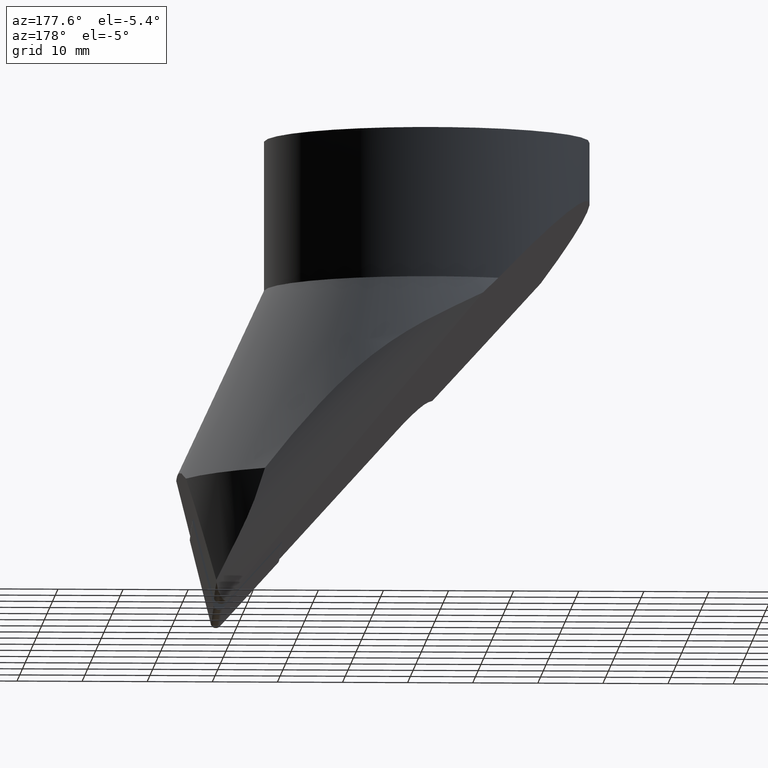
[diagram: clean part render]
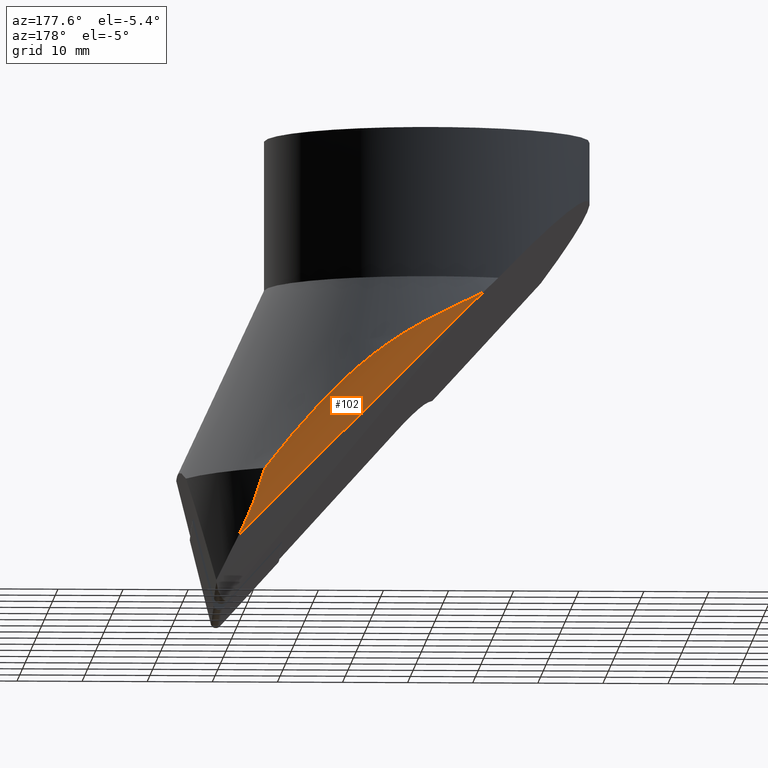
[diagram: same view with one face highlighted and labeled with its STEP entity id]
A machine part, auxiliary view. The second image highlights one B-rep face of the part: STEP entity #102.
In plain terms, the highlighted cylindrical surface (partial cylindrical patch) has radius 10 mm, axis along (-0.7071, -0, 0.7071).
Its self-contained STEP definition (entity closure, byte-faithful):
#102=ADVANCED_FACE('',(#160),#161,.T.);
#160=FACE_OUTER_BOUND('',#220,.T.);
#161=CYLINDRICAL_SURFACE('',#221,9.99999999999998);
#220=EDGE_LOOP('',(#461,#462,#463,#464));
#221=AXIS2_PLACEMENT_3D('',#465,#466,#467);
#461=ORIENTED_EDGE('',*,*,#561,.T.);
#462=ORIENTED_EDGE('',*,*,#544,.T.);
#463=ORIENTED_EDGE('',*,*,#542,.T.);
#464=ORIENTED_EDGE('',*,*,#554,.T.);
#465=CARTESIAN_POINT('',(28.5461566551938,20.0,-49.390958817152));
#466=DIRECTION('',(-0.707106781186551,-1.77635683940026E-016,0.707106781186544));
#467=DIRECTION('',(-0.547615356615699,-0.632641164007935,-0.547615356615705));
#542=EDGE_CURVE('',#669,#667,#670,.T.);
#544=EDGE_CURVE('',#672,#669,#673,.T.);
#554=EDGE_CURVE('',#667,#687,#689,.T.);
#561=EDGE_CURVE('',#687,#672,#697,.T.);
#667=VERTEX_POINT('',#926);
#669=VERTEX_POINT('',#928);
#670=ELLIPSE('',#929,153.926965462736,10.0);
#672=VERTEX_POINT('',#931);
#673=LINE('',#932,#933);
#687=VERTEX_POINT('',#972);
#689=B_SPLINE_CURVE_WITH_KNOTS('',3,(#974,#975,#976,#977,#978,#979,#980,#981,#982,#983,#984,#985,#986,#987,#988,#989,#990,#991,#992,#993,#994,#995),.UNSPECIFIED.,.F.,.F.,(4,2,2,2,2,2,2,2,2,2,4),(5.38590403565052,8.21193915588639,12.3179087338296,16.4238783117728,20.529847889716,24.6358174676592,28.7417870456024,32.8477566235456,38.8944105542421,44.9410644849387,47.8820155514567),.UNSPECIFIED.);
#697=B_SPLINE_CURVE_WITH_KNOTS('',3,(#1017,#1018,#1019,#1020,#1021,#1022,#1023,#1024),.UNSPECIFIED.,.F.,.F.,(4,2,2,4),(8.25670964065648,11.380040990702,14.7922020646932,19.1852676347604),.UNSPECIFIED.);
#926=CARTESIAN_POINT('',(-7.60580303439302,25.0209814646655,-25.4692685548091));
#928=CARTESIAN_POINT('',(-7.50703199067204,25.0,-25.5852188852024));
#929=AXIS2_PLACEMENT_3D('',#1130,#1131,#1132);
#931=CARTESIAN_POINT('',(29.9332590941918,25.0,-63.0255099700659));
#932=CARTESIAN_POINT('',(29.9332590941918,25.0,-63.0255099700659));
#933=VECTOR('',#1136,52.9485674314107);
#972=CARTESIAN_POINT('',(26.0595029148042,29.0155528610662,-53.0230968871316));
#974=CARTESIAN_POINT('',(-7.60580303439302,25.0209814646655,-25.4692685548091));
#975=CARTESIAN_POINT('',(-6.85080917776266,25.4476908186954,-25.8739022218903));
#976=CARTESIAN_POINT('',(-6.06754710338048,25.8387562222253,-26.2762537365998));
#977=CARTESIAN_POINT('',(-4.09706770449978,26.709768040994,-27.27492538649));
#978=CARTESIAN_POINT('',(-2.88715874648163,27.1495622891798,-27.8770053927431));
#979=CARTESIAN_POINT('',(-0.434565861377152,27.887441659911,-29.1396551003539));
#980=CARTESIAN_POINT('',(0.807922908590704,28.1856664844369,-29.8005222090091));
#981=CARTESIAN_POINT('',(3.27487085713778,28.6655203583673,-31.2058840195934));
#982=CARTESIAN_POINT('',(4.50180530614873,28.8479818628839,-31.9520870427411));
#983=CARTESIAN_POINT('',(6.90354574326943,29.1292230381781,-33.538037062421));
#984=CARTESIAN_POINT('',(8.07833284924676,29.228326276579,-34.3777552579016));
#985=CARTESIAN_POINT('',(10.3515362237225,29.3724463702372,-36.1351061278396));
#986=CARTESIAN_POINT('',(11.4503861863795,29.4175777266003,-37.0526313790858));
#987=CARTESIAN_POINT('',(13.5618449299124,29.4740652140977,-38.9342271629975));
#988=CARTESIAN_POINT('',(14.5746980482516,29.4853256002616,-39.8980263644309));
#989=CARTESIAN_POINT('',(16.9676943581826,29.4853256002616,-42.2910226743619));
#990=CARTESIAN_POINT('',(18.4062333423778,29.4606174357129,-43.8376045336349));
#991=CARTESIAN_POINT('',(21.2596829680398,29.3612458693553,-47.0821684735012));
#992=CARTESIAN_POINT('',(22.6752635228023,29.2863141569293,-48.7795531099531));
#993=CARTESIAN_POINT('',(24.7348568717359,29.1344030132617,-51.337865048048));
#994=CARTESIAN_POINT('',(25.4017669463406,29.0782436703007,-52.180621080454));
#995=CARTESIAN_POINT('',(26.0595029148042,29.0155528610662,-53.0230968871316));
#1017=CARTESIAN_POINT('',(26.0595029148042,29.0155528610662,-53.0230968871316));
#1018=CARTESIAN_POINT('',(26.3487899759557,28.7557378215461,-54.0780175228472));
#1019=CARTESIAN_POINT('',(26.6752836164298,28.4545113186862,-55.1155649717955));
#1020=CARTESIAN_POINT('',(27.3988556463527,27.7592719520479,-57.2081306864874));
#1021=CARTESIAN_POINT('',(27.7997442419552,27.3589822914266,-58.2557724763555));
#1022=CARTESIAN_POINT('',(28.7205998913891,26.3948898617026,-60.4899643238777));
#1023=CARTESIAN_POINT('',(29.308012664613,25.748626534972,-61.7890125342907));
#1024=CARTESIAN_POINT('',(29.9332590941918,25.0,-63.0255099700659));
#1130=CARTESIAN_POINT('',(-100.612431219038,20.0,79.7676290570782));
#1131=DIRECTION('',(0.747674819359017,-0.104449876194447,0.655799197818529));
#1132=DIRECTION('',(-0.659927538360836,-0.00680004278672497,0.751298478323433));
#1136=DIRECTION('',(-0.707106781186551,0.0,0.707106781186544));